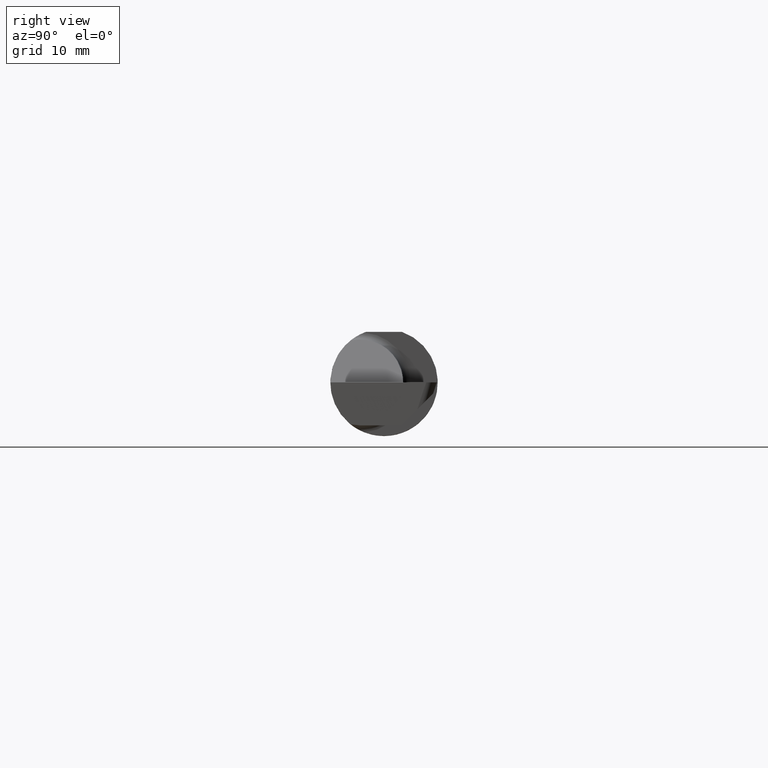
[diagram: clean part render]
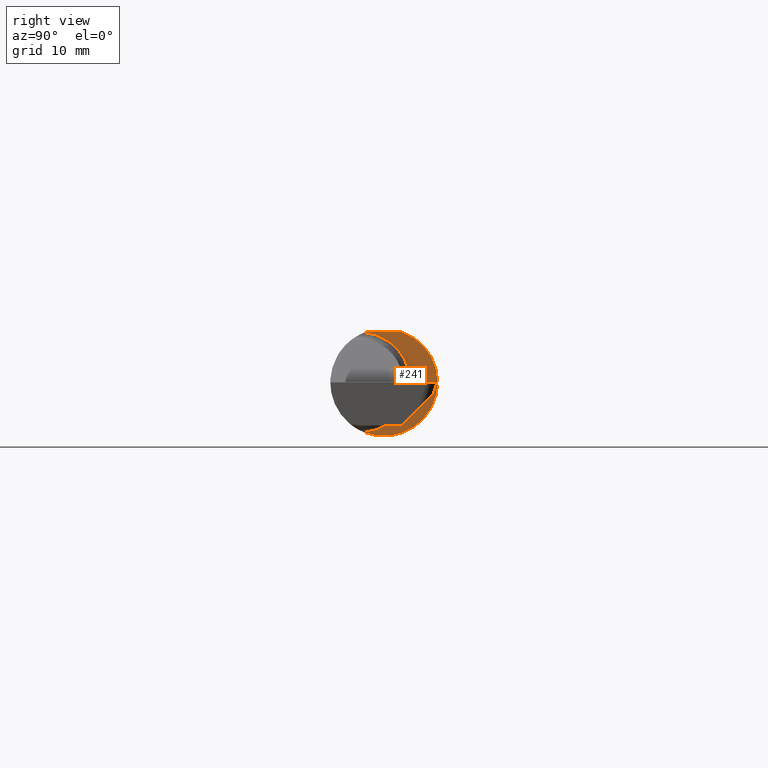
[diagram: same view with one face highlighted and labeled with its STEP entity id]
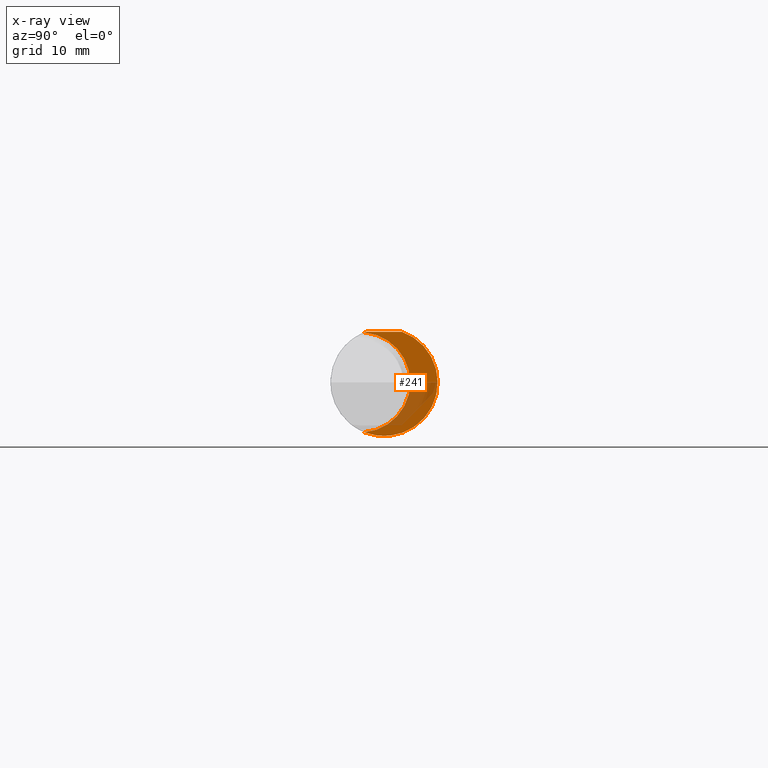
[diagram: x-ray of the same camera — body ghosted, the highlighted face saturated]
A machine part, right view. The second image highlights one B-rep face of the part: STEP entity #241.
The next image is the same camera in x-ray: the body ghosted, the highlighted face saturated — about 28% of this face is hidden behind the body in this view.
In plain terms, the highlighted planar face has unit normal (1, 0, 0).
Its self-contained STEP definition (entity closure, byte-faithful):
#1 = CIRCLE ( 'NONE', #670, 0.1873499999999999888 ) ;
#3 = DIRECTION ( 'NONE',  ( 0.000000000000000000, 0.000000000000000000, 1.000000000000000000 ) ) ;
#47 = DIRECTION ( 'NONE',  ( 0.000000000000000000, 0.000000000000000000, -1.000000000000000000 ) ) ;
#76 = EDGE_LOOP ( 'NONE', ( #729, #356, #236, #349 ) ) ;
#97 = CIRCLE ( 'NONE', #149, 0.1749999999999999889 ) ;
#149 = AXIS2_PLACEMENT_3D ( 'NONE', #612, #372, #3 ) ;
#159 = CARTESIAN_POINT ( 'NONE',  ( 2.075000000000000178, 0.1873499999999998500, 0.1763499999999999235 ) ) ;
#181 = FACE_OUTER_BOUND ( 'NONE', #76, .T. ) ;
#202 = AXIS2_PLACEMENT_3D ( 'NONE', #791, #600, #47 ) ;
#208 = DIRECTION ( 'NONE',  ( 1.000000000000000000, 0.000000000000000000, 0.000000000000000000 ) ) ;
#216 = VERTEX_POINT ( 'NONE', #542 ) ;
#221 = VERTEX_POINT ( 'NONE', #534 ) ;
#230 = CARTESIAN_POINT ( 'NONE',  ( 2.075000000000000178, -0.06851976604679065053, -0.1743704796142198643 ) ) ;
#236 = ORIENTED_EDGE ( 'NONE', *, *, #732, .T. ) ;
#241 = ADVANCED_FACE ( 'NONE', ( #181 ), #482, .T. ) ;
#253 = VERTEX_POINT ( 'NONE', #538 ) ;
#288 = EDGE_CURVE ( 'NONE', #216, #626, #97, .T. ) ;
#349 = ORIENTED_EDGE ( 'NONE', *, *, #288, .T. ) ;
#356 = ORIENTED_EDGE ( 'NONE', *, *, #688, .F. ) ;
#366 = CARTESIAN_POINT ( 'NONE',  ( 2.075000000000000178, 0.000000000000000000, 0.000000000000000000 ) ) ;
#372 = DIRECTION ( 'NONE',  ( -1.000000000000000000, -0.000000000000000000, -0.000000000000000000 ) ) ;
#407 = DIRECTION ( 'NONE',  ( 0.000000000000000000, 1.000000000000000000, 0.000000000000000000 ) ) ;
#433 = CIRCLE ( 'NONE', #681, 0.1873499999999999888 ) ;
#469 = LINE ( 'NONE', #159, #775 ) ;
#482 = PLANE ( 'NONE',  #202 ) ;
#528 = EDGE_CURVE ( 'NONE', #626, #253, #1, .T. ) ;
#534 = CARTESIAN_POINT ( 'NONE',  ( 2.075000000000000178, -0.06325108694718283020, 0.1763499999999999235 ) ) ;
#538 = CARTESIAN_POINT ( 'NONE',  ( 2.075000000000000178, 0.06325108694718235836, 0.1763499999999999235 ) ) ;
#542 = CARTESIAN_POINT ( 'NONE',  ( 2.075000000000000178, -0.06851976604679065053, 0.1743704796142198643 ) ) ;
#600 = DIRECTION ( 'NONE',  ( 1.000000000000000000, 0.000000000000000000, 0.000000000000000000 ) ) ;
#610 = DIRECTION ( 'NONE',  ( 0.000000000000000000, 0.000000000000000000, -1.000000000000000000 ) ) ;
#612 = CARTESIAN_POINT ( 'NONE',  ( 2.075000000000000178, -0.08334999999999999354, 0.000000000000000000 ) ) ;
#626 = VERTEX_POINT ( 'NONE', #230 ) ;
#632 = DIRECTION ( 'NONE',  ( 0.000000000000000000, 0.000000000000000000, -1.000000000000000000 ) ) ;
#670 = AXIS2_PLACEMENT_3D ( 'NONE', #770, #208, #632 ) ;
#681 = AXIS2_PLACEMENT_3D ( 'NONE', #366, #743, #610 ) ;
#688 = EDGE_CURVE ( 'NONE', #221, #253, #469, .T. ) ;
#729 = ORIENTED_EDGE ( 'NONE', *, *, #528, .T. ) ;
#732 = EDGE_CURVE ( 'NONE', #221, #216, #433, .T. ) ;
#743 = DIRECTION ( 'NONE',  ( 1.000000000000000000, 0.000000000000000000, 0.000000000000000000 ) ) ;
#770 = CARTESIAN_POINT ( 'NONE',  ( 2.075000000000000178, 0.000000000000000000, 0.000000000000000000 ) ) ;
#775 = VECTOR ( 'NONE', #407, 39.37007874015748143 ) ;
#791 = CARTESIAN_POINT ( 'NONE',  ( 2.075000000000000178, 0.1873499999999999055, 0.000000000000000000 ) ) ;